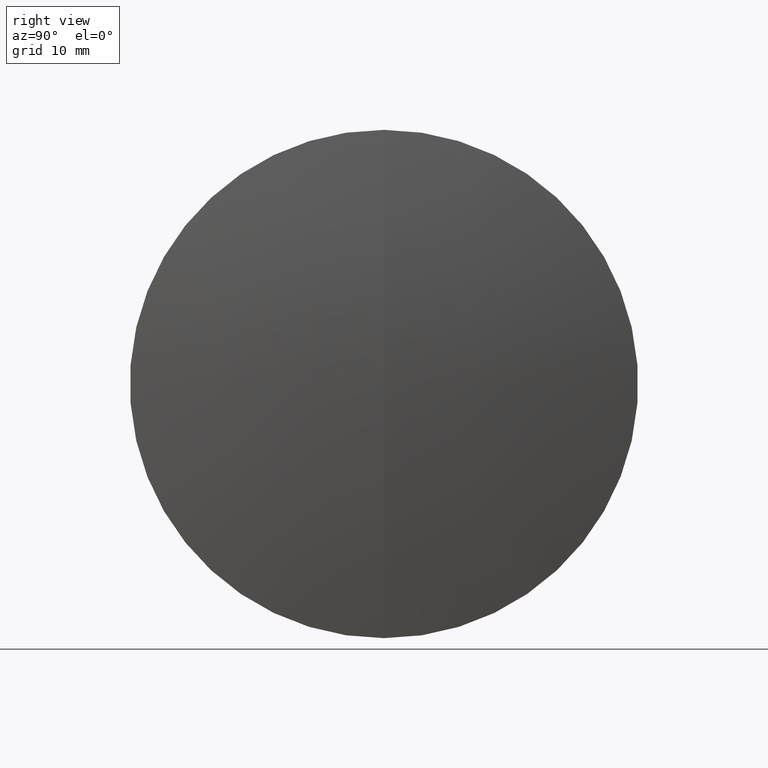
[diagram: clean part render]
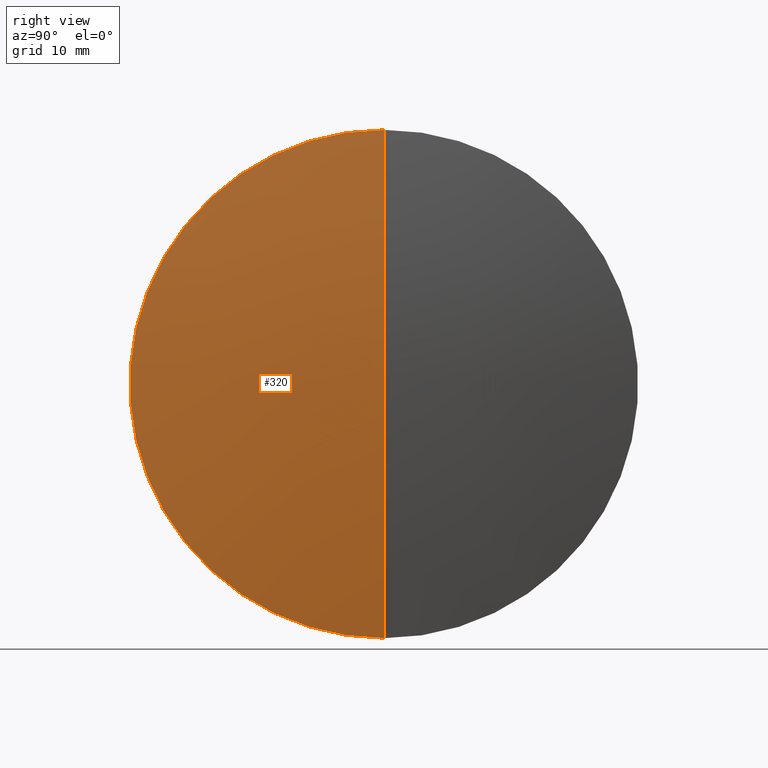
[diagram: same view with one face highlighted and labeled with its STEP entity id]
A machine part, right view. The second image highlights one B-rep face of the part: STEP entity #320.
In plain terms, the highlighted spherical surface has radius 205.63 mm.
Its self-contained STEP definition (entity closure, byte-faithful):
#13 = DIRECTION ( 'NONE',  ( 0.0000000000000000000, 0.0000000000000000000, 1.000000000000000000 ) ) ;
#25 = CARTESIAN_POINT ( 'NONE',  ( 324.6429958763490600, 0.0000000000000000000, 31.50000000000004300 ) ) ;
#57 = DIRECTION ( 'NONE',  ( 0.0000000000000000000, 0.0000000000000000000, 1.000000000000000000 ) ) ;
#58 = VERTEX_POINT ( 'NONE', #272 ) ;
#87 = DIRECTION ( 'NONE',  ( -0.0000000000000000000, 1.000000000000000000, 1.224646799147353200E-016 ) ) ;
#91 = AXIS2_PLACEMENT_3D ( 'NONE', #266, #210, #13 ) ;
#99 = EDGE_LOOP ( 'NONE', ( #117, #126, #321 ) ) ;
#105 = EDGE_CURVE ( 'NONE', #172, #218, #302, .T. ) ;
#114 = EDGE_CURVE ( 'NONE', #58, #172, #307, .T. ) ;
#117 = ORIENTED_EDGE ( 'NONE', *, *, #114, .F. ) ;
#118 = DIRECTION ( 'NONE',  ( 0.0000000000000000000, 1.000000000000000000, 0.0000000000000000000 ) ) ;
#122 = CIRCLE ( 'NONE', #290, 205.6299999999999700 ) ;
#126 = ORIENTED_EDGE ( 'NONE', *, *, #319, .T. ) ;
#140 = CARTESIAN_POINT ( 'NONE',  ( 121.4400261637978700, 0.0000000000000000000, 0.0000000000000000000 ) ) ;
#167 = SPHERICAL_SURFACE ( 'NONE', #178, 205.6299999999999700 ) ;
#172 = VERTEX_POINT ( 'NONE', #341 ) ;
#177 = DIRECTION ( 'NONE',  ( 0.0000000000000000000, -1.000000000000000000, 0.0000000000000000000 ) ) ;
#178 = AXIS2_PLACEMENT_3D ( 'NONE', #140, #118, #57 ) ;
#197 = CARTESIAN_POINT ( 'NONE',  ( 121.4400261637978700, 0.0000000000000000000, 0.0000000000000000000 ) ) ;
#204 = FACE_OUTER_BOUND ( 'NONE', #99, .T. ) ;
#206 = AXIS2_PLACEMENT_3D ( 'NONE', #252, #87, #261 ) ;
#210 = DIRECTION ( 'NONE',  ( -1.000000000000000000, -0.0000000000000000000, -0.0000000000000000000 ) ) ;
#218 = VERTEX_POINT ( 'NONE', #25 ) ;
#252 = CARTESIAN_POINT ( 'NONE',  ( 121.4400261637978700, 0.0000000000000000000, 0.0000000000000000000 ) ) ;
#261 = DIRECTION ( 'NONE',  ( 0.0000000000000000000, -1.224646799147353500E-016, 1.000000000000000000 ) ) ;
#266 = CARTESIAN_POINT ( 'NONE',  ( 324.6429958763490600, 0.0000000000000000000, 0.0000000000000000000 ) ) ;
#272 = CARTESIAN_POINT ( 'NONE',  ( 327.0700261637978800, 0.0000000000000000000, 1.259120606543351200E-014 ) ) ;
#290 = AXIS2_PLACEMENT_3D ( 'NONE', #197, #177, #347 ) ;
#302 = CIRCLE ( 'NONE', #91, 31.50000000000004300 ) ;
#307 = CIRCLE ( 'NONE', #206, 205.6299999999999700 ) ;
#319 = EDGE_CURVE ( 'NONE', #58, #218, #122, .T. ) ;
#320 = ADVANCED_FACE ( 'NONE', ( #204 ), #167, .T. ) ;
#321 = ORIENTED_EDGE ( 'NONE', *, *, #105, .F. ) ;
#341 = CARTESIAN_POINT ( 'NONE',  ( 324.6429958763490600, 3.857637417314168200E-015, -31.50000000000004300 ) ) ;
#347 = DIRECTION ( 'NONE',  ( 0.0000000000000000000, 0.0000000000000000000, -1.000000000000000000 ) ) ;